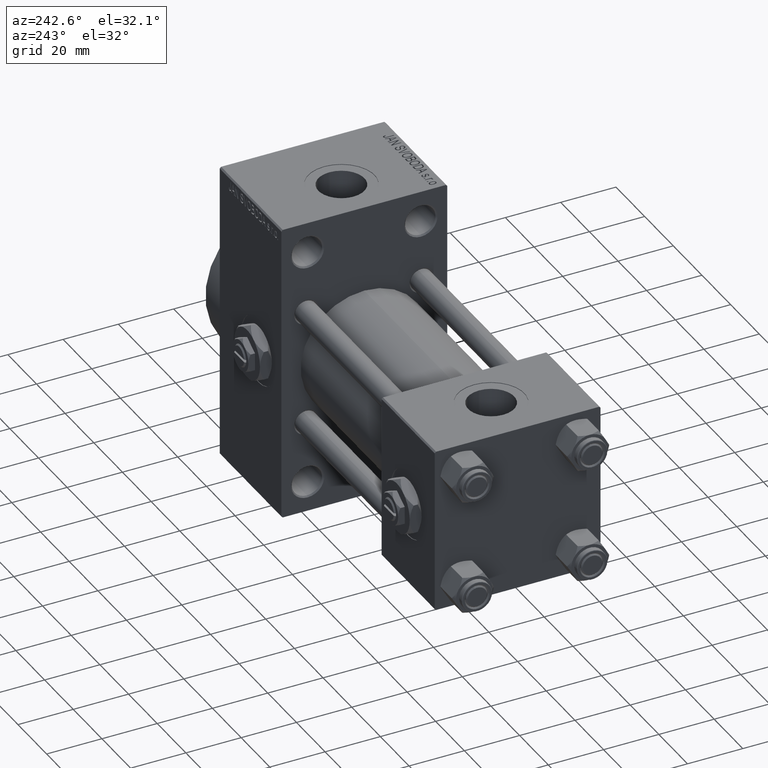
[diagram: clean part render]
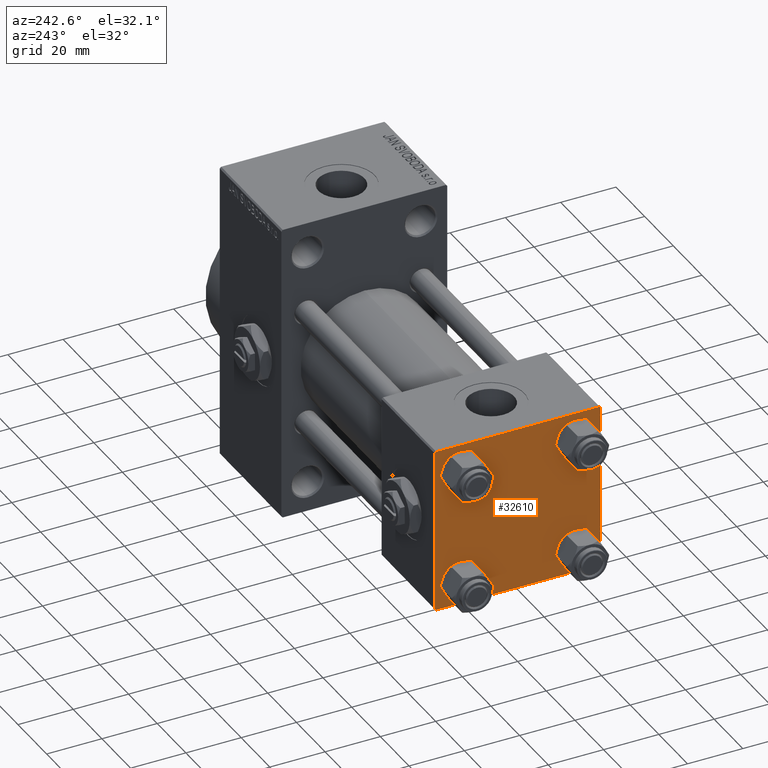
[diagram: same view with one face highlighted and labeled with its STEP entity id]
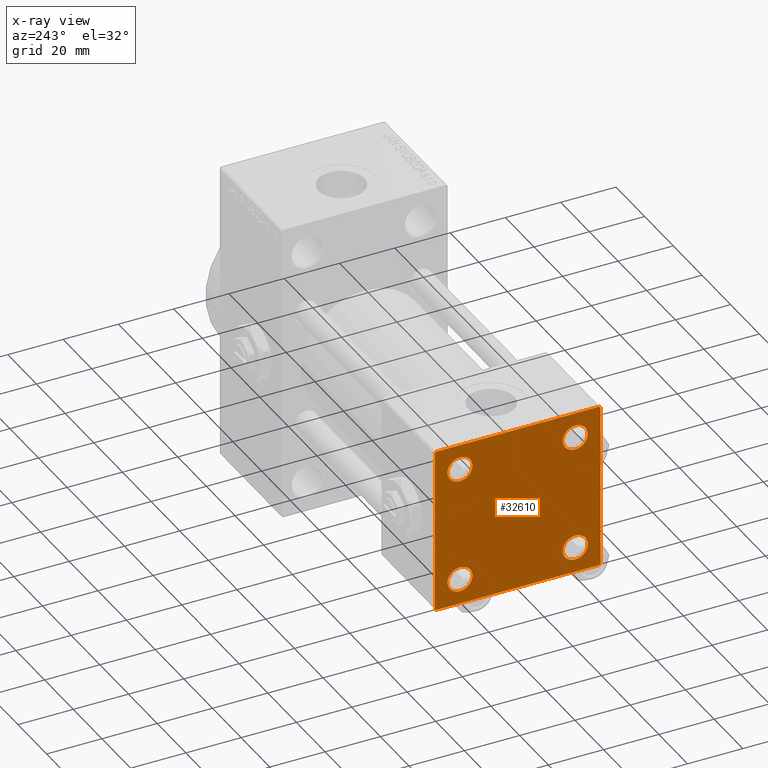
[diagram: x-ray of the same camera — body ghosted, the highlighted face saturated]
A machine part, auxiliary view. The second image highlights one B-rep face of the part: STEP entity #32610.
The next image is the same camera in x-ray: the body ghosted, the highlighted face saturated — about 0% of this face is hidden behind the body in this view.
In plain terms, the highlighted planar face has unit normal (-1, 0, 0).
Its self-contained STEP definition (entity closure, byte-faithful):
#367 = VERTEX_POINT ( 'NONE', #2539 ) ;
#797 = DIRECTION ( 'NONE',  ( -0.000000000000000000, 0.7071067811865474617, 0.7071067811865474617 ) ) ;
#841 = DIRECTION ( 'NONE',  ( 0.000000000000000000, -1.000000000000000000, -1.156482317317871725E-16 ) ) ;
#1243 = LINE ( 'NONE', #7968, #8644 ) ;
#1714 = ORIENTED_EDGE ( 'NONE', *, *, #28303, .T. ) ;
#1773 = EDGE_CURVE ( 'NONE', #31208, #33584, #20416, .T. ) ;
#2094 = CARTESIAN_POINT ( 'NONE',  ( 0.000000000000000000, 29.74999999999957723, -29.75000000000040501 ) ) ;
#2350 = VERTEX_POINT ( 'NONE', #34759 ) ;
#2539 = CARTESIAN_POINT ( 'NONE',  ( 0.000000000000000000, -20.84999999999999076, 25.35000000000002274 ) ) ;
#2571 = EDGE_CURVE ( 'NONE', #33584, #19117, #40468, .T. ) ;
#2703 = ORIENTED_EDGE ( 'NONE', *, *, #36248, .T. ) ;
#2986 = CARTESIAN_POINT ( 'NONE',  ( 0.000000000000000000, 20.84999999999999787, 25.35000000000001918 ) ) ;
#3240 = CIRCLE ( 'NONE', #31083, 4.500000000000017764 ) ;
#3415 = LINE ( 'NONE', #22599, #14053 ) ;
#4120 = DIRECTION ( 'NONE',  ( 0.000000000000000000, 0.000000000000000000, 1.000000000000000000 ) ) ;
#4160 = EDGE_LOOP ( 'NONE', ( #43174, #13187 ) ) ;
#4393 = VECTOR ( 'NONE', #841, 1000.000000000000000 ) ;
#5106 = VECTOR ( 'NONE', #797, 1000.000000000000114 ) ;
#5574 = AXIS2_PLACEMENT_3D ( 'NONE', #41202, #49183, #22503 ) ;
#5648 = CARTESIAN_POINT ( 'NONE',  ( 0.000000000000000000, 29.99999999999999289, -29.50000000000000000 ) ) ;
#6545 = VERTEX_POINT ( 'NONE', #28780 ) ;
#7277 = EDGE_CURVE ( 'NONE', #8383, #17674, #3240, .T. ) ;
#7898 = ORIENTED_EDGE ( 'NONE', *, *, #32479, .T. ) ;
#7968 = CARTESIAN_POINT ( 'NONE',  ( 0.000000000000000000, 29.74999999999999645, 29.74999999999999645 ) ) ;
#8383 = VERTEX_POINT ( 'NONE', #27365 ) ;
#8615 = VECTOR ( 'NONE', #38881, 1000.000000000000000 ) ;
#8644 = VECTOR ( 'NONE', #38637, 1000.000000000000114 ) ;
#9076 = CIRCLE ( 'NONE', #42552, 4.500000000000017764 ) ;
#9145 = VERTEX_POINT ( 'NONE', #48614 ) ;
#9282 = LINE ( 'NONE', #35708, #4393 ) ;
#9625 = FACE_BOUND ( 'NONE', #4160, .T. ) ;
#9992 = EDGE_LOOP ( 'NONE', ( #22788, #2703 ) ) ;
#10674 = VECTOR ( 'NONE', #47930, 1000.000000000000000 ) ;
#12317 = CIRCLE ( 'NONE', #30585, 4.500000000000017764 ) ;
#12523 = ORIENTED_EDGE ( 'NONE', *, *, #2571, .T. ) ;
#12718 = VERTEX_POINT ( 'NONE', #26520 ) ;
#12794 = AXIS2_PLACEMENT_3D ( 'NONE', #17359, #32556, #47779 ) ;
#13174 = CARTESIAN_POINT ( 'NONE',  ( 0.000000000000000000, 20.84999999999999787, -25.35000000000001918 ) ) ;
#13187 = ORIENTED_EDGE ( 'NONE', *, *, #41000, .T. ) ;
#14053 = VECTOR ( 'NONE', #30320, 1000.000000000000114 ) ;
#14125 = CARTESIAN_POINT ( 'NONE',  ( 0.000000000000000000, 20.84999999999999787, 20.85000000000000142 ) ) ;
#14242 = EDGE_CURVE ( 'NONE', #28987, #367, #9076, .T. ) ;
#14429 = ORIENTED_EDGE ( 'NONE', *, *, #14242, .T. ) ;
#14437 = DIRECTION ( 'NONE',  ( 0.000000000000000000, -1.000000000000000000, -1.156482317317871725E-16 ) ) ;
#14787 = CARTESIAN_POINT ( 'NONE',  ( 0.000000000000000000, 20.84999999999999787, 16.34999999999998366 ) ) ;
#14924 = ORIENTED_EDGE ( 'NONE', *, *, #1773, .T. ) ;
#15388 = EDGE_LOOP ( 'NONE', ( #32875, #14429 ) ) ;
#16976 = EDGE_CURVE ( 'NONE', #6545, #12718, #9282, .T. ) ;
#17292 = DIRECTION ( 'NONE',  ( -0.000000000000000000, -0.7071067811865574537, -0.7071067811865376918 ) ) ;
#17359 = CARTESIAN_POINT ( 'NONE',  ( 0.000000000000000000, 0.000000000000000000, 0.000000000000000000 ) ) ;
#17674 = VERTEX_POINT ( 'NONE', #13174 ) ;
#18505 = CARTESIAN_POINT ( 'NONE',  ( 0.000000000000000000, -30.00000000000000000, 29.99999999999999289 ) ) ;
#18592 = DIRECTION ( 'NONE',  ( 1.000000000000000000, -0.000000000000000000, 0.000000000000000000 ) ) ;
#18726 = ORIENTED_EDGE ( 'NONE', *, *, #45650, .F. ) ;
#18743 = CARTESIAN_POINT ( 'NONE',  ( 0.000000000000000000, -20.84999999999999076, -16.34999999999998721 ) ) ;
#19117 = VERTEX_POINT ( 'NONE', #38108 ) ;
#19160 = CIRCLE ( 'NONE', #5574, 4.500000000000017764 ) ;
#20416 = LINE ( 'NONE', #27404, #8615 ) ;
#21096 = FACE_OUTER_BOUND ( 'NONE', #47585, .T. ) ;
#21290 = CARTESIAN_POINT ( 'NONE',  ( 0.000000000000000000, 20.84999999999999787, -20.85000000000000142 ) ) ;
#21332 = DIRECTION ( 'NONE',  ( 0.000000000000000000, 0.000000000000000000, 1.000000000000000000 ) ) ;
#22026 = EDGE_CURVE ( 'NONE', #367, #28987, #36396, .T. ) ;
#22503 = DIRECTION ( 'NONE',  ( 0.000000000000000000, 0.000000000000000000, 1.000000000000000000 ) ) ;
#22599 = CARTESIAN_POINT ( 'NONE',  ( 0.000000000000000000, -29.75000000000001066, -29.75000000000001066 ) ) ;
#22788 = ORIENTED_EDGE ( 'NONE', *, *, #31804, .T. ) ;
#23040 = AXIS2_PLACEMENT_3D ( 'NONE', #42101, #44186, #26882 ) ;
#23132 = VECTOR ( 'NONE', #14437, 1000.000000000000000 ) ;
#23201 = EDGE_CURVE ( 'NONE', #2350, #9145, #3415, .T. ) ;
#23298 = DIRECTION ( 'NONE',  ( 1.000000000000000000, -0.000000000000000000, 0.000000000000000000 ) ) ;
#23710 = CARTESIAN_POINT ( 'NONE',  ( -0.000000000000000000, -29.74999999999999645, 29.74999999999999645 ) ) ;
#24434 = AXIS2_PLACEMENT_3D ( 'NONE', #25143, #36870, #32630 ) ;
#24823 = FACE_BOUND ( 'NONE', #40829, .T. ) ;
#25143 = CARTESIAN_POINT ( 'NONE',  ( 0.000000000000000000, -20.84999999999999076, 20.85000000000000497 ) ) ;
#26520 = CARTESIAN_POINT ( 'NONE',  ( 0.000000000000000000, -29.49999999999998579, 29.99999999999999289 ) ) ;
#26882 = DIRECTION ( 'NONE',  ( 0.000000000000000000, 0.000000000000000000, 1.000000000000000000 ) ) ;
#27153 = DIRECTION ( 'NONE',  ( 0.000000000000000000, 0.000000000000000000, 1.000000000000000000 ) ) ;
#27365 = CARTESIAN_POINT ( 'NONE',  ( 0.000000000000000000, 20.84999999999999787, -16.34999999999998366 ) ) ;
#27400 = DIRECTION ( 'NONE',  ( 1.000000000000000000, -0.000000000000000000, 0.000000000000000000 ) ) ;
#27404 = CARTESIAN_POINT ( 'NONE',  ( 0.000000000000000000, 29.99999999999999289, 30.00000000000000000 ) ) ;
#27781 = CARTESIAN_POINT ( 'NONE',  ( 0.000000000000000000, 20.84999999999999787, -20.85000000000000142 ) ) ;
#28303 = EDGE_CURVE ( 'NONE', #6545, #31208, #1243, .T. ) ;
#28780 = CARTESIAN_POINT ( 'NONE',  ( 0.000000000000000000, 29.49999999999999289, 30.00000000000000000 ) ) ;
#28987 = VERTEX_POINT ( 'NONE', #41890 ) ;
#29128 = ORIENTED_EDGE ( 'NONE', *, *, #23201, .T. ) ;
#29665 = DIRECTION ( 'NONE',  ( 0.000000000000000000, 0.000000000000000000, 1.000000000000000000 ) ) ;
#30275 = VERTEX_POINT ( 'NONE', #14787 ) ;
#30320 = DIRECTION ( 'NONE',  ( 0.000000000000000000, -0.7071067811865474617, 0.7071067811865474617 ) ) ;
#30411 = AXIS2_PLACEMENT_3D ( 'NONE', #21290, #37486, #44982 ) ;
#30585 = AXIS2_PLACEMENT_3D ( 'NONE', #41632, #27400, #27153 ) ;
#30735 = CARTESIAN_POINT ( 'NONE',  ( 0.000000000000000000, -20.84999999999999076, -25.35000000000002274 ) ) ;
#31083 = AXIS2_PLACEMENT_3D ( 'NONE', #27781, #23298, #4120 ) ;
#31089 = CIRCLE ( 'NONE', #38272, 4.500000000000017764 ) ;
#31208 = VERTEX_POINT ( 'NONE', #33165 ) ;
#31284 = ORIENTED_EDGE ( 'NONE', *, *, #46417, .T. ) ;
#31804 = EDGE_CURVE ( 'NONE', #40299, #33953, #19160, .T. ) ;
#32479 = EDGE_CURVE ( 'NONE', #19117, #2350, #33366, .T. ) ;
#32556 = DIRECTION ( 'NONE',  ( -1.000000000000000000, 0.000000000000000000, -0.000000000000000000 ) ) ;
#32610 = ADVANCED_FACE ( 'NONE', ( #40534, #43786, #9625, #24823, #21096 ), #36293, .T. ) ;
#32630 = DIRECTION ( 'NONE',  ( 0.000000000000000000, 0.000000000000000000, 1.000000000000000000 ) ) ;
#32875 = ORIENTED_EDGE ( 'NONE', *, *, #22026, .T. ) ;
#33007 = ORIENTED_EDGE ( 'NONE', *, *, #16976, .F. ) ;
#33165 = CARTESIAN_POINT ( 'NONE',  ( 0.000000000000000000, 29.99999999999999289, 29.50000000000000000 ) ) ;
#33366 = LINE ( 'NONE', #44845, #23132 ) ;
#33584 = VERTEX_POINT ( 'NONE', #5648 ) ;
#33862 = VERTEX_POINT ( 'NONE', #47482 ) ;
#33953 = VERTEX_POINT ( 'NONE', #30735 ) ;
#34759 = CARTESIAN_POINT ( 'NONE',  ( 0.000000000000000000, -29.50000000000000000, -30.00000000000000711 ) ) ;
#35309 = ORIENTED_EDGE ( 'NONE', *, *, #46791, .T. ) ;
#35708 = CARTESIAN_POINT ( 'NONE',  ( 0.000000000000000000, 29.99999999999999289, 30.00000000000000000 ) ) ;
#35723 = VECTOR ( 'NONE', #17292, 999.9999999999998863 ) ;
#35981 = CIRCLE ( 'NONE', #30411, 4.500000000000017764 ) ;
#36248 = EDGE_CURVE ( 'NONE', #33953, #40299, #41382, .T. ) ;
#36293 = PLANE ( 'NONE',  #12794 ) ;
#36396 = CIRCLE ( 'NONE', #24434, 4.500000000000017764 ) ;
#36870 = DIRECTION ( 'NONE',  ( 1.000000000000000000, -0.000000000000000000, 0.000000000000000000 ) ) ;
#37486 = DIRECTION ( 'NONE',  ( 1.000000000000000000, -0.000000000000000000, 0.000000000000000000 ) ) ;
#37968 = EDGE_CURVE ( 'NONE', #41513, #30275, #31089, .T. ) ;
#38108 = CARTESIAN_POINT ( 'NONE',  ( 0.000000000000000000, 29.49999999999997868, -30.00000000000000000 ) ) ;
#38143 = ORIENTED_EDGE ( 'NONE', *, *, #37968, .T. ) ;
#38272 = AXIS2_PLACEMENT_3D ( 'NONE', #14125, #18592, #21332 ) ;
#38637 = DIRECTION ( 'NONE',  ( 0.000000000000000000, 0.7071067811865474617, -0.7071067811865474617 ) ) ;
#38881 = DIRECTION ( 'NONE',  ( 0.000000000000000000, 0.000000000000000000, -1.000000000000000000 ) ) ;
#40299 = VERTEX_POINT ( 'NONE', #18743 ) ;
#40468 = LINE ( 'NONE', #2094, #35723 ) ;
#40534 = FACE_BOUND ( 'NONE', #15388, .T. ) ;
#40829 = EDGE_LOOP ( 'NONE', ( #38143, #35309 ) ) ;
#41000 = EDGE_CURVE ( 'NONE', #17674, #8383, #35981, .T. ) ;
#41180 = LINE ( 'NONE', #18505, #10674 ) ;
#41202 = CARTESIAN_POINT ( 'NONE',  ( 0.000000000000000000, -20.84999999999999076, -20.85000000000000497 ) ) ;
#41382 = CIRCLE ( 'NONE', #23040, 4.500000000000017764 ) ;
#41513 = VERTEX_POINT ( 'NONE', #2986 ) ;
#41632 = CARTESIAN_POINT ( 'NONE',  ( 0.000000000000000000, 20.84999999999999787, 20.85000000000000142 ) ) ;
#41890 = CARTESIAN_POINT ( 'NONE',  ( 0.000000000000000000, -20.84999999999999076, 16.34999999999998721 ) ) ;
#41928 = LINE ( 'NONE', #23710, #5106 ) ;
#42101 = CARTESIAN_POINT ( 'NONE',  ( 0.000000000000000000, -20.84999999999999076, -20.85000000000000497 ) ) ;
#42121 = DIRECTION ( 'NONE',  ( 1.000000000000000000, -0.000000000000000000, 0.000000000000000000 ) ) ;
#42552 = AXIS2_PLACEMENT_3D ( 'NONE', #44889, #42121, #29665 ) ;
#43174 = ORIENTED_EDGE ( 'NONE', *, *, #7277, .T. ) ;
#43786 = FACE_BOUND ( 'NONE', #9992, .T. ) ;
#44186 = DIRECTION ( 'NONE',  ( 1.000000000000000000, -0.000000000000000000, 0.000000000000000000 ) ) ;
#44845 = CARTESIAN_POINT ( 'NONE',  ( 0.000000000000000000, 29.99999999999999289, -30.00000000000000000 ) ) ;
#44889 = CARTESIAN_POINT ( 'NONE',  ( 0.000000000000000000, -20.84999999999999076, 20.85000000000000497 ) ) ;
#44982 = DIRECTION ( 'NONE',  ( 0.000000000000000000, 0.000000000000000000, 1.000000000000000000 ) ) ;
#45650 = EDGE_CURVE ( 'NONE', #33862, #9145, #41180, .T. ) ;
#46417 = EDGE_CURVE ( 'NONE', #33862, #12718, #41928, .T. ) ;
#46791 = EDGE_CURVE ( 'NONE', #30275, #41513, #12317, .T. ) ;
#47482 = CARTESIAN_POINT ( 'NONE',  ( 0.000000000000000000, -30.00000000000000000, 29.49999999999999289 ) ) ;
#47585 = EDGE_LOOP ( 'NONE', ( #14924, #12523, #7898, #29128, #18726, #31284, #33007, #1714 ) ) ;
#47779 = DIRECTION ( 'NONE',  ( -0.000000000000000000, 0.000000000000000000, 1.000000000000000000 ) ) ;
#47930 = DIRECTION ( 'NONE',  ( 0.000000000000000000, 0.000000000000000000, -1.000000000000000000 ) ) ;
#48614 = CARTESIAN_POINT ( 'NONE',  ( 0.000000000000000000, -30.00000000000000000, -29.50000000000001776 ) ) ;
#49183 = DIRECTION ( 'NONE',  ( 1.000000000000000000, -0.000000000000000000, 0.000000000000000000 ) ) ;